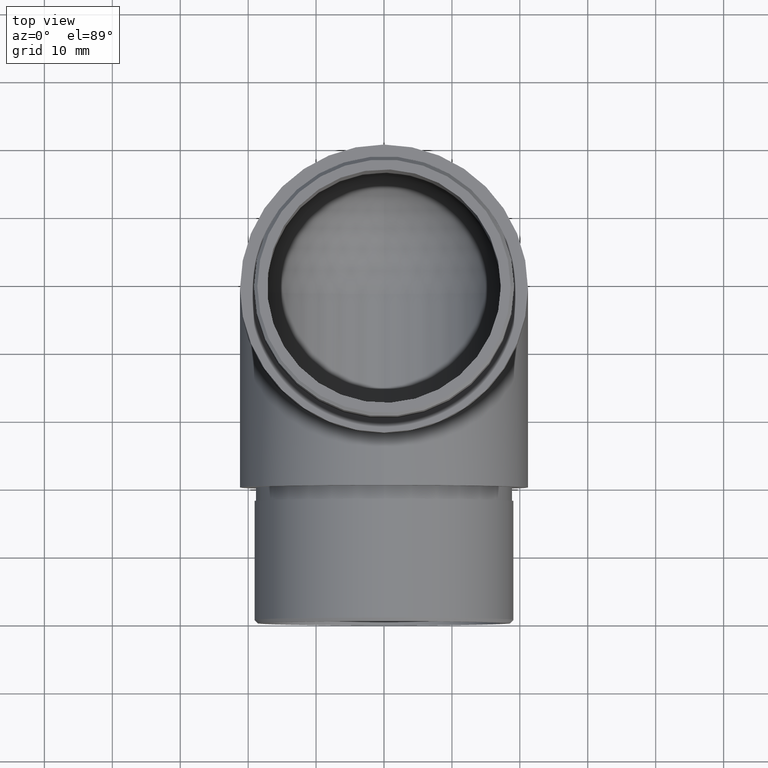
[diagram: clean part render]
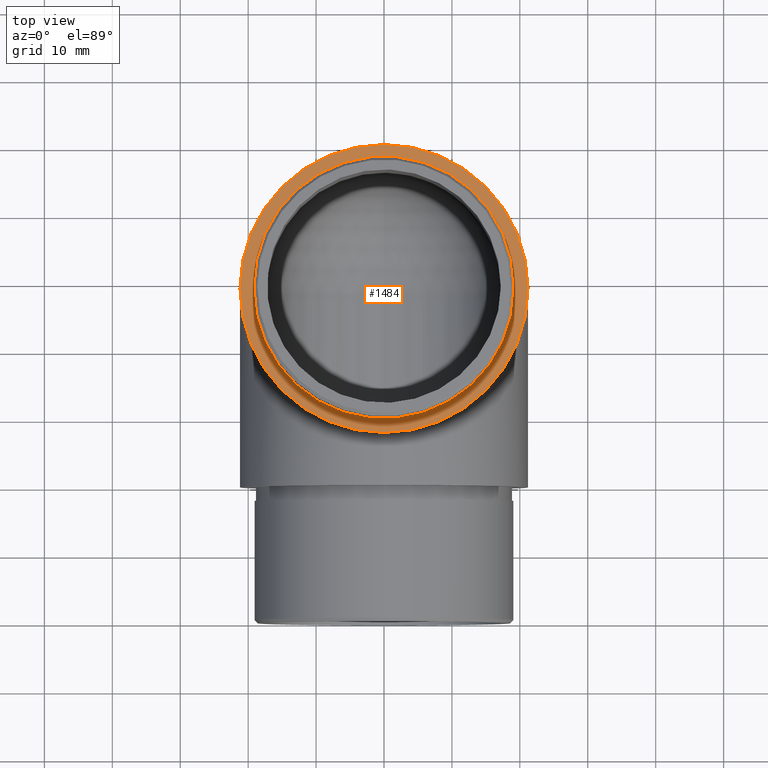
[diagram: same view with one face highlighted and labeled with its STEP entity id]
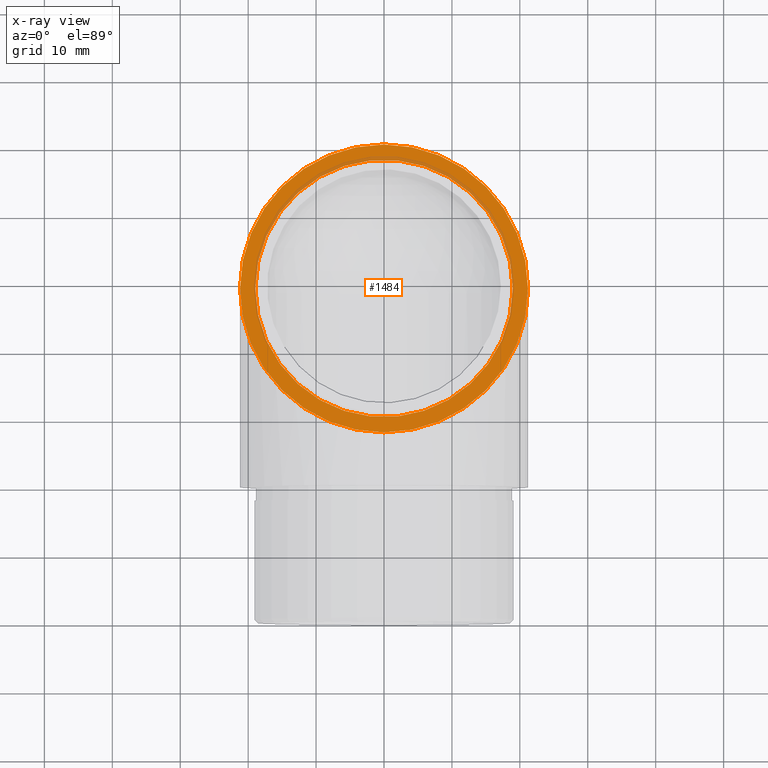
[diagram: x-ray of the same camera — body ghosted, the highlighted face saturated]
A machine part, top view. The second image highlights one B-rep face of the part: STEP entity #1484.
The next image is the same camera in x-ray: the body ghosted, the highlighted face saturated — about 10% of this face is hidden behind the body in this view.
In plain terms, the highlighted planar face has unit normal (0, 0, 1).
Its self-contained STEP definition (entity closure, byte-faithful):
#570 = CARTESIAN_POINT ( 'NONE',  ( -3.469446951953614200E-015, 7.600000000000009400, 50.00000000000000000 ) ) ;
#802 = CIRCLE ( 'NONE', #8387, 18.94999999999999900 ) ;
#1126 = CARTESIAN_POINT ( 'NONE',  ( 0.0000000000000000000, 28.80000000000001100, 50.00000000000000000 ) ) ;
#1150 = VERTEX_POINT ( 'NONE', #1578 ) ;
#1458 = AXIS2_PLACEMENT_3D ( 'NONE', #5546, #10390, #8401 ) ;
#1460 = DIRECTION ( 'NONE',  ( 1.000000000000000000, 0.0000000000000000000, 0.0000000000000000000 ) ) ;
#1484 = ADVANCED_FACE ( 'NONE', ( #1729, #5711 ), #10589, .T. ) ;
#1578 = CARTESIAN_POINT ( 'NONE',  ( -3.469446951953614200E-015, 50.00000000000000000, 50.00000000000000000 ) ) ;
#1729 = FACE_OUTER_BOUND ( 'NONE', #2045, .T. ) ;
#2045 = EDGE_LOOP ( 'NONE', ( #3950, #10176, #4570, #4102 ) ) ;
#2112 = DIRECTION ( 'NONE',  ( 1.000000000000000000, 0.0000000000000000000, 0.0000000000000000000 ) ) ;
#2140 = ORIENTED_EDGE ( 'NONE', *, *, #6605, .F. ) ;
#2483 = DIRECTION ( 'NONE',  ( 1.000000000000000000, 0.0000000000000000000, 0.0000000000000000000 ) ) ;
#2773 = CARTESIAN_POINT ( 'NONE',  ( 18.94999999999999600, 28.80000000000000800, 50.00000000000000000 ) ) ;
#3031 = DIRECTION ( 'NONE',  ( 0.0000000000000000000, 0.0000000000000000000, 1.000000000000000000 ) ) ;
#3177 = CARTESIAN_POINT ( 'NONE',  ( -21.19999999999999600, 28.80000000000000800, 50.00000000000000000 ) ) ;
#3338 = CIRCLE ( 'NONE', #7422, 21.19999999999999900 ) ;
#3359 = EDGE_CURVE ( 'NONE', #11824, #1150, #4683, .T. ) ;
#3435 = CARTESIAN_POINT ( 'NONE',  ( -3.469446951953614200E-015, 28.80000000000000800, 50.00000000000000000 ) ) ;
#3742 = DIRECTION ( 'NONE',  ( 1.000000000000000000, 0.0000000000000000000, -0.0000000000000000000 ) ) ;
#3918 = CIRCLE ( 'NONE', #4566, 21.19999999999999900 ) ;
#3950 = ORIENTED_EDGE ( 'NONE', *, *, #3359, .T. ) ;
#4102 = ORIENTED_EDGE ( 'NONE', *, *, #9869, .T. ) ;
#4200 = EDGE_CURVE ( 'NONE', #1150, #7572, #3338, .T. ) ;
#4442 = CARTESIAN_POINT ( 'NONE',  ( 3.469446951953614200E-015, 28.80000000000000800, 50.00000000000000000 ) ) ;
#4551 = DIRECTION ( 'NONE',  ( 0.0000000000000000000, 0.0000000000000000000, 1.000000000000000000 ) ) ;
#4566 = AXIS2_PLACEMENT_3D ( 'NONE', #9606, #6805, #2112 ) ;
#4570 = ORIENTED_EDGE ( 'NONE', *, *, #11627, .T. ) ;
#4683 = CIRCLE ( 'NONE', #7000, 21.19999999999999900 ) ;
#5157 = VERTEX_POINT ( 'NONE', #570 ) ;
#5546 = CARTESIAN_POINT ( 'NONE',  ( -3.469446951953614200E-015, 28.80000000000000800, 50.00000000000000000 ) ) ;
#5711 = FACE_BOUND ( 'NONE', #9274, .T. ) ;
#6605 = EDGE_CURVE ( 'NONE', #12125, #12125, #802, .T. ) ;
#6805 = DIRECTION ( 'NONE',  ( 0.0000000000000000000, 0.0000000000000000000, 1.000000000000000000 ) ) ;
#7000 = AXIS2_PLACEMENT_3D ( 'NONE', #3435, #8172, #2483 ) ;
#7379 = DIRECTION ( 'NONE',  ( 1.000000000000000000, 0.0000000000000000000, 0.0000000000000000000 ) ) ;
#7422 = AXIS2_PLACEMENT_3D ( 'NONE', #4442, #8181, #1460 ) ;
#7572 = VERTEX_POINT ( 'NONE', #3177 ) ;
#8172 = DIRECTION ( 'NONE',  ( 0.0000000000000000000, 0.0000000000000000000, 1.000000000000000000 ) ) ;
#8181 = DIRECTION ( 'NONE',  ( 0.0000000000000000000, 0.0000000000000000000, 1.000000000000000000 ) ) ;
#8184 = AXIS2_PLACEMENT_3D ( 'NONE', #1126, #3031, #3742 ) ;
#8387 = AXIS2_PLACEMENT_3D ( 'NONE', #10257, #4551, #7379 ) ;
#8401 = DIRECTION ( 'NONE',  ( 1.000000000000000000, 0.0000000000000000000, 0.0000000000000000000 ) ) ;
#9274 = EDGE_LOOP ( 'NONE', ( #2140 ) ) ;
#9606 = CARTESIAN_POINT ( 'NONE',  ( 3.469446951953614200E-015, 28.80000000000000800, 50.00000000000000000 ) ) ;
#9869 = EDGE_CURVE ( 'NONE', #5157, #11824, #12001, .T. ) ;
#10176 = ORIENTED_EDGE ( 'NONE', *, *, #4200, .T. ) ;
#10257 = CARTESIAN_POINT ( 'NONE',  ( -3.469446951953614200E-015, 28.80000000000000800, 50.00000000000000000 ) ) ;
#10390 = DIRECTION ( 'NONE',  ( 0.0000000000000000000, 0.0000000000000000000, 1.000000000000000000 ) ) ;
#10589 = PLANE ( 'NONE',  #8184 ) ;
#10935 = CARTESIAN_POINT ( 'NONE',  ( 21.19999999999999600, 28.80000000000000800, 50.00000000000000000 ) ) ;
#11627 = EDGE_CURVE ( 'NONE', #7572, #5157, #3918, .T. ) ;
#11824 = VERTEX_POINT ( 'NONE', #10935 ) ;
#12001 = CIRCLE ( 'NONE', #1458, 21.19999999999999900 ) ;
#12125 = VERTEX_POINT ( 'NONE', #2773 ) ;